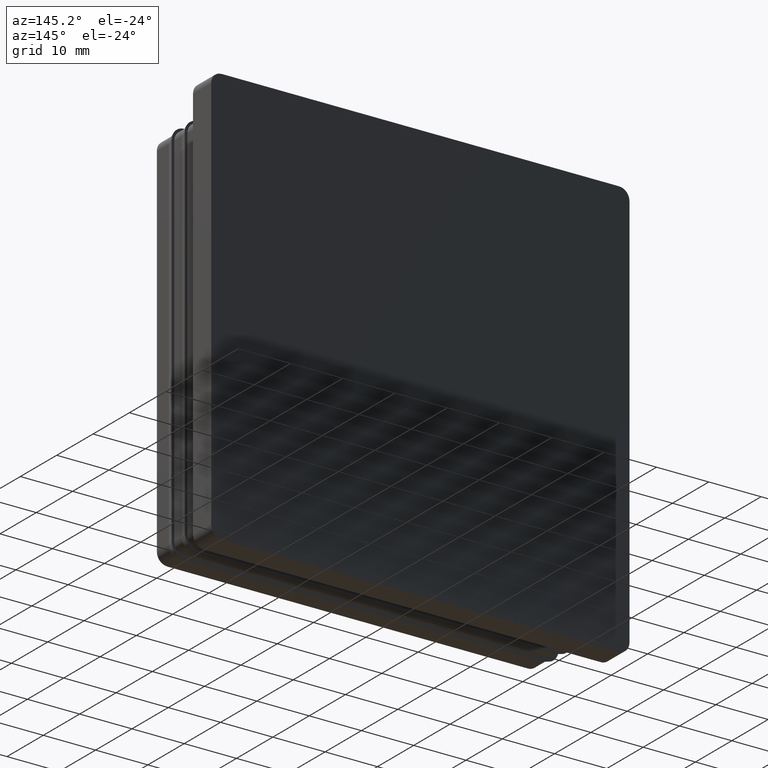
[diagram: clean part render]
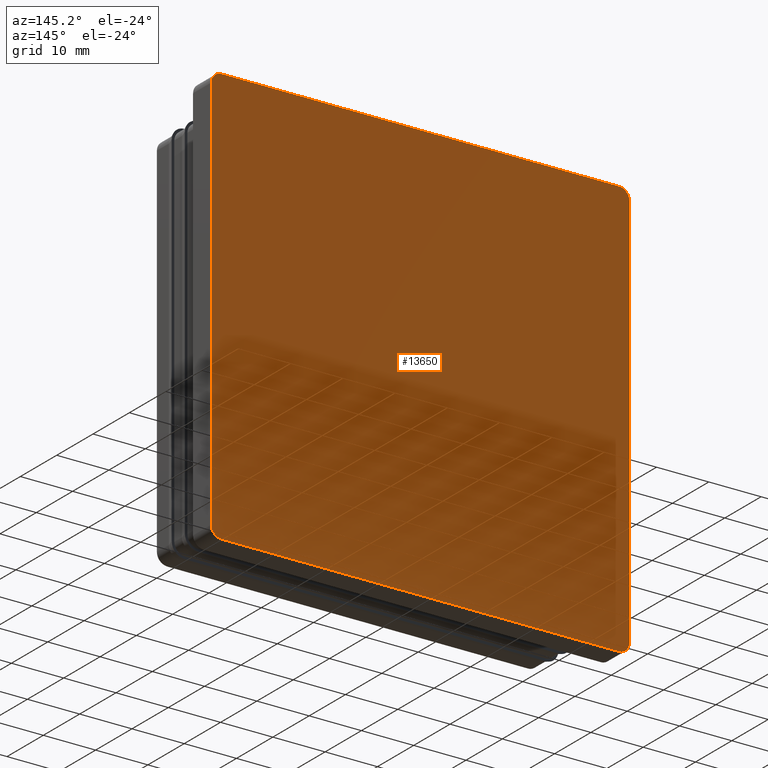
[diagram: same view with one face highlighted and labeled with its STEP entity id]
A machine part, auxiliary view. The second image highlights one B-rep face of the part: STEP entity #13650.
In plain terms, the highlighted planar face has unit normal (0, -1, 0).
Its self-contained STEP definition (entity closure, byte-faithful):
#257 = DIRECTION ( 'NONE',  ( -0.0000000000000000000, 1.000000000000000000, -0.0000000000000000000 ) ) ;
#577 = DIRECTION ( 'NONE',  ( -0.0000000000000000000, 1.000000000000000000, -0.0000000000000000000 ) ) ;
#1030 = AXIS2_PLACEMENT_3D ( 'NONE', #5795, #5781, #5759 ) ;
#1205 = ORIENTED_EDGE ( 'NONE', *, *, #15965, .T. ) ;
#1256 = CIRCLE ( 'NONE', #1030, 2.000000000000001800 ) ;
#1282 = ORIENTED_EDGE ( 'NONE', *, *, #4323, .T. ) ;
#1364 = EDGE_CURVE ( 'NONE', #10366, #2492, #1256, .T. ) ;
#1385 = VECTOR ( 'NONE', #8940, 1000.000000000000000 ) ;
#1474 = DIRECTION ( 'NONE',  ( 0.0000000000000000000, -1.000000000000000000, 0.0000000000000000000 ) ) ;
#2492 = VERTEX_POINT ( 'NONE', #11247 ) ;
#3116 = ORIENTED_EDGE ( 'NONE', *, *, #1364, .T. ) ;
#3316 = CIRCLE ( 'NONE', #16488, 2.000000000000001800 ) ;
#3458 = CARTESIAN_POINT ( 'NONE',  ( -40.00000000000000000, 5.000000000000000000, 38.00000000000000000 ) ) ;
#3467 = EDGE_CURVE ( 'NONE', #2492, #5433, #5789, .T. ) ;
#3636 = VERTEX_POINT ( 'NONE', #16655 ) ;
#3988 = AXIS2_PLACEMENT_3D ( 'NONE', #13225, #1474, #10715 ) ;
#4323 = EDGE_CURVE ( 'NONE', #16333, #14297, #11802, .T. ) ;
#4656 = VECTOR ( 'NONE', #16105, 1000.000000000000000 ) ;
#4869 = LINE ( 'NONE', #7604, #1385 ) ;
#4882 = CARTESIAN_POINT ( 'NONE',  ( 40.00000000000000000, 5.000000000000000000, -38.00000000000000000 ) ) ;
#4935 = CARTESIAN_POINT ( 'NONE',  ( 38.00000000000000000, 5.000000000000000000, 40.00000000000000000 ) ) ;
#5433 = VERTEX_POINT ( 'NONE', #4935 ) ;
#5699 = CARTESIAN_POINT ( 'NONE',  ( 40.00000000000000000, 5.000000000000000000, 40.00000000000000000 ) ) ;
#5759 = DIRECTION ( 'NONE',  ( 0.0000000000000000000, 0.0000000000000000000, -1.000000000000000000 ) ) ;
#5781 = DIRECTION ( 'NONE',  ( -0.0000000000000000000, 1.000000000000000000, -0.0000000000000000000 ) ) ;
#5789 = LINE ( 'NONE', #11387, #9319 ) ;
#5795 = CARTESIAN_POINT ( 'NONE',  ( -38.00000000000000000, 5.000000000000000000, 38.00000000000000000 ) ) ;
#5888 = DIRECTION ( 'NONE',  ( -0.0000000000000000000, 1.000000000000000000, -0.0000000000000000000 ) ) ;
#6425 = EDGE_LOOP ( 'NONE', ( #17031, #12953, #1282, #14027, #1205, #12664, #16492, #3116 ) ) ;
#7604 = CARTESIAN_POINT ( 'NONE',  ( -40.00000000000000000, 5.000000000000000000, -40.00000000000000000 ) ) ;
#8150 = CARTESIAN_POINT ( 'NONE',  ( -38.00000000000000000, 5.000000000000000000, -38.00000000000000000 ) ) ;
#8467 = CARTESIAN_POINT ( 'NONE',  ( 38.00000000000000000, 5.000000000000000000, 38.00000000000000000 ) ) ;
#8769 = AXIS2_PLACEMENT_3D ( 'NONE', #8467, #577, #9808 ) ;
#8940 = DIRECTION ( 'NONE',  ( -1.000000000000000000, -0.0000000000000000000, -0.0000000000000000000 ) ) ;
#9319 = VECTOR ( 'NONE', #16541, 1000.000000000000000 ) ;
#9369 = PLANE ( 'NONE',  #3988 ) ;
#9475 = DIRECTION ( 'NONE',  ( 0.0000000000000000000, 0.0000000000000000000, -1.000000000000000000 ) ) ;
#9516 = VECTOR ( 'NONE', #13586, 1000.000000000000000 ) ;
#9808 = DIRECTION ( 'NONE',  ( 0.0000000000000000000, 0.0000000000000000000, -1.000000000000000000 ) ) ;
#10366 = VERTEX_POINT ( 'NONE', #3458 ) ;
#10715 = DIRECTION ( 'NONE',  ( 0.0000000000000000000, -0.0000000000000000000, -1.000000000000000000 ) ) ;
#10772 = EDGE_CURVE ( 'NONE', #14297, #3636, #3316, .T. ) ;
#11247 = CARTESIAN_POINT ( 'NONE',  ( -38.00000000000000000, 5.000000000000000000, 40.00000000000000000 ) ) ;
#11387 = CARTESIAN_POINT ( 'NONE',  ( -40.00000000000000000, 5.000000000000000000, 40.00000000000000000 ) ) ;
#11757 = CARTESIAN_POINT ( 'NONE',  ( -40.00000000000000000, 5.000000000000000000, -38.00000000000000000 ) ) ;
#11802 = LINE ( 'NONE', #5699, #9516 ) ;
#12126 = VERTEX_POINT ( 'NONE', #11757 ) ;
#12664 = ORIENTED_EDGE ( 'NONE', *, *, #15318, .T. ) ;
#12933 = CIRCLE ( 'NONE', #13506, 2.000000000000001800 ) ;
#12953 = ORIENTED_EDGE ( 'NONE', *, *, #15875, .T. ) ;
#13225 = CARTESIAN_POINT ( 'NONE',  ( 0.0000000000000000000, 5.000000000000000000, 0.0000000000000000000 ) ) ;
#13416 = VERTEX_POINT ( 'NONE', #15656 ) ;
#13506 = AXIS2_PLACEMENT_3D ( 'NONE', #8150, #257, #9475 ) ;
#13586 = DIRECTION ( 'NONE',  ( 0.0000000000000000000, 0.0000000000000000000, -1.000000000000000000 ) ) ;
#13650 = ADVANCED_FACE ( 'NONE', ( #16444 ), #9369, .F. ) ;
#13781 = CARTESIAN_POINT ( 'NONE',  ( 38.00000000000000000, 5.000000000000000000, -38.00000000000000000 ) ) ;
#14027 = ORIENTED_EDGE ( 'NONE', *, *, #10772, .T. ) ;
#14297 = VERTEX_POINT ( 'NONE', #4882 ) ;
#14750 = CARTESIAN_POINT ( 'NONE',  ( 40.00000000000000000, 5.000000000000000000, 38.00000000000000000 ) ) ;
#14793 = CARTESIAN_POINT ( 'NONE',  ( -40.00000000000000000, 5.000000000000000000, 40.00000000000000000 ) ) ;
#15089 = DIRECTION ( 'NONE',  ( 0.0000000000000000000, 0.0000000000000000000, -1.000000000000000000 ) ) ;
#15145 = LINE ( 'NONE', #14793, #4656 ) ;
#15318 = EDGE_CURVE ( 'NONE', #13416, #12126, #12933, .T. ) ;
#15656 = CARTESIAN_POINT ( 'NONE',  ( -38.00000000000000000, 5.000000000000000000, -40.00000000000000000 ) ) ;
#15875 = EDGE_CURVE ( 'NONE', #5433, #16333, #16568, .T. ) ;
#15965 = EDGE_CURVE ( 'NONE', #3636, #13416, #4869, .T. ) ;
#16105 = DIRECTION ( 'NONE',  ( -0.0000000000000000000, -0.0000000000000000000, 1.000000000000000000 ) ) ;
#16333 = VERTEX_POINT ( 'NONE', #14750 ) ;
#16406 = EDGE_CURVE ( 'NONE', #12126, #10366, #15145, .T. ) ;
#16444 = FACE_OUTER_BOUND ( 'NONE', #6425, .T. ) ;
#16488 = AXIS2_PLACEMENT_3D ( 'NONE', #13781, #5888, #15089 ) ;
#16492 = ORIENTED_EDGE ( 'NONE', *, *, #16406, .T. ) ;
#16541 = DIRECTION ( 'NONE',  ( 1.000000000000000000, 0.0000000000000000000, 0.0000000000000000000 ) ) ;
#16568 = CIRCLE ( 'NONE', #8769, 2.000000000000001800 ) ;
#16655 = CARTESIAN_POINT ( 'NONE',  ( 38.00000000000000000, 5.000000000000000000, -40.00000000000000000 ) ) ;
#17031 = ORIENTED_EDGE ( 'NONE', *, *, #3467, .T. ) ;